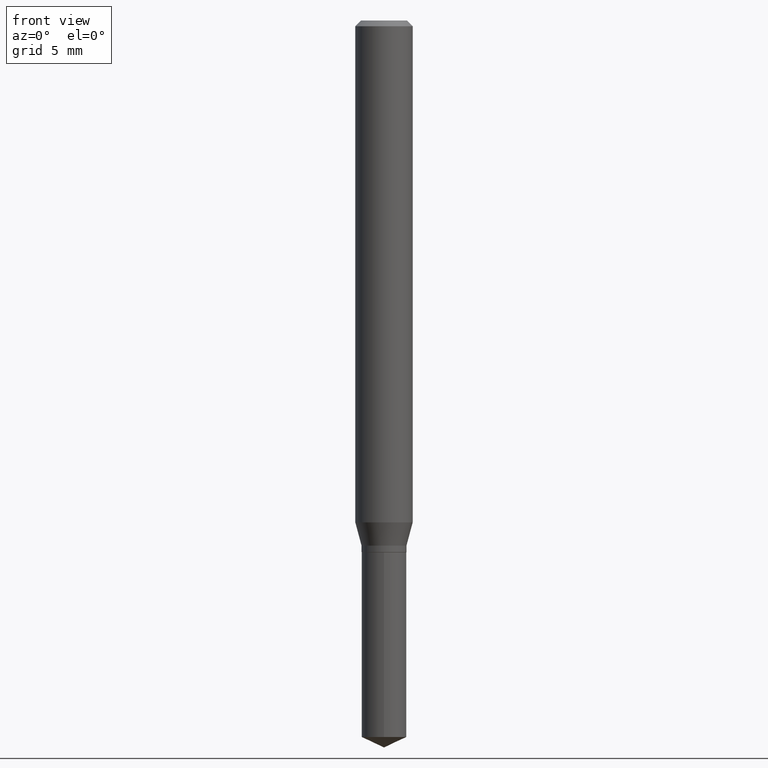
[diagram: clean part render]
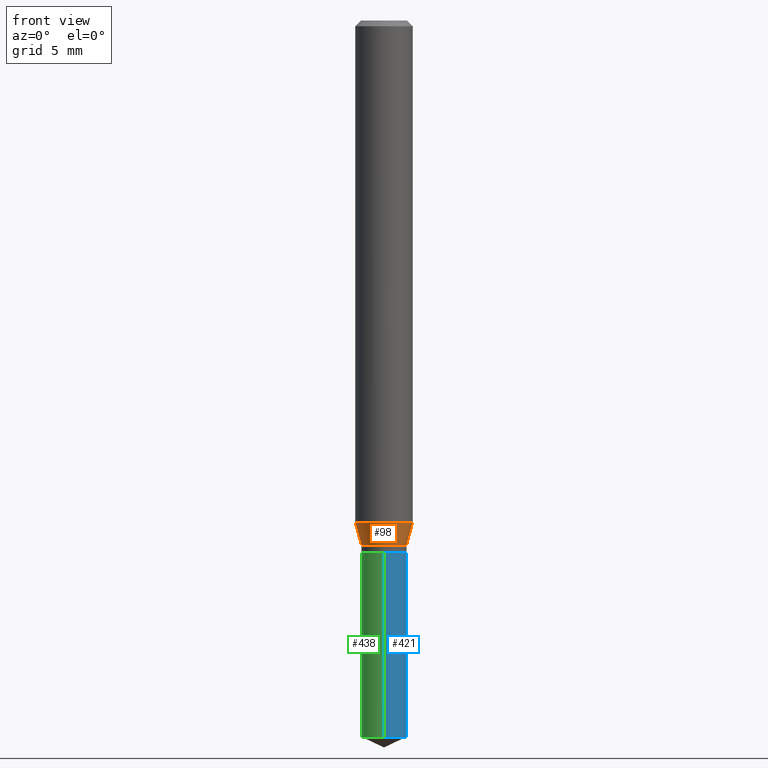
[diagram: same view with three faces highlighted in distinct colors, each labeled with its STEP entity id]
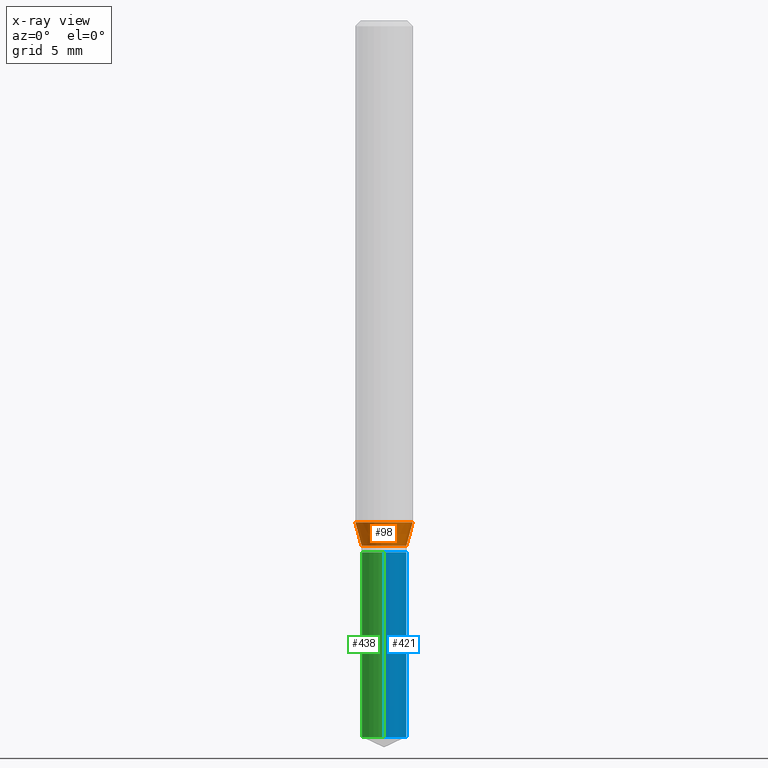
[diagram: x-ray of the same camera — body ghosted, the three highlighted faces saturated]
A machine part, front view with three faces highlighted in distinct colors.
The next image is the same camera in x-ray (body ghosted, the three faces saturated) — at least one of them is partly hidden behind the body in this view.
Their STEP definitions:

[orange] entity #98 — the highlighted conical surface has half-angle 15 deg.
#10 = DIRECTION ( 'NONE',  ( -2.445468806185136597E-29, 3.491481338843145583E-15, 1.000000000000000000 ) ) ;
#22 = ORIENTED_EDGE ( 'NONE', *, *, #50, .T. ) ;
#23 = DIRECTION ( 'NONE',  ( -0.2588190451025210725, 5.211531920934548675E-15, 0.9659258262890682012 ) ) ;
#25 = CARTESIAN_POINT ( 'NONE',  ( -0.04624999999999999944, -3.467661644435105114E-15, -1.080600000000000005 ) ) ;
#37 = EDGE_CURVE ( 'NONE', #220, #103, #196, .T. ) ;
#41 = LINE ( 'NONE', #267, #450 ) ;
#43 = EDGE_LOOP ( 'NONE', ( #129, #22, #459, #265 ) ) ;
#50 = EDGE_CURVE ( 'NONE', #220, #403, #480, .T. ) ;
#56 = VECTOR ( 'NONE', #23, 39.37007874015748143 ) ;
#57 = CIRCLE ( 'NONE', #108, 0.05905000000000013016 ) ;
#72 = CARTESIAN_POINT ( 'NONE',  ( 0.05905000000000013016, -4.018449743268188111E-15, -1.032829749663117802 ) ) ;
#98 = ADVANCED_FACE ( 'NONE', ( #123 ), #389, .T. ) ;
#103 = VERTEX_POINT ( 'NONE', #285 ) ;
#108 = AXIS2_PLACEMENT_3D ( 'NONE', #384, #216, #313 ) ;
#123 = FACE_OUTER_BOUND ( 'NONE', #43, .T. ) ;
#129 = ORIENTED_EDGE ( 'NONE', *, *, #37, .F. ) ;
#146 = CARTESIAN_POINT ( 'NONE',  ( 0.04624999999999999944, -4.095856758596892601E-15, -1.080600000000000005 ) ) ;
#147 = DIRECTION ( 'NONE',  ( 0.2588190451025210725, 1.565188264969624137E-15, 0.9659258262890682012 ) ) ;
#159 = DIRECTION ( 'NONE',  ( 1.000000000000000000, -6.982962677686265133E-15, 0.000000000000000000 ) ) ;
#161 = DIRECTION ( 'NONE',  ( -2.445468806185136597E-29, 3.491481338843145583E-15, 1.000000000000000000 ) ) ;
#196 = LINE ( 'NONE', #467, #56 ) ;
#216 = DIRECTION ( 'NONE',  ( -2.445468806185136597E-29, 3.491481338843145583E-15, 1.000000000000000000 ) ) ;
#220 = VERTEX_POINT ( 'NONE', #25 ) ;
#221 = AXIS2_PLACEMENT_3D ( 'NONE', #360, #10, #159 ) ;
#225 = DIRECTION ( 'NONE',  ( 1.000000000000000000, -6.982962677686265133E-15, 0.000000000000000000 ) ) ;
#265 = ORIENTED_EDGE ( 'NONE', *, *, #391, .F. ) ;
#267 = CARTESIAN_POINT ( 'NONE',  ( 0.04624999999999999944, -4.095856758596892601E-15, -1.080600000000000005 ) ) ;
#285 = CARTESIAN_POINT ( 'NONE',  ( -0.05905000000000013016, -3.186530311684473698E-15, -1.032829749663117802 ) ) ;
#302 = AXIS2_PLACEMENT_3D ( 'NONE', #426, #161, #225 ) ;
#313 = DIRECTION ( 'NONE',  ( 1.000000000000000000, -6.982962677686265133E-15, 0.000000000000000000 ) ) ;
#360 = CARTESIAN_POINT ( 'NONE',  ( 2.642573591963658303E-29, -3.772894734753902608E-15, -1.080600000000000005 ) ) ;
#384 = CARTESIAN_POINT ( 'NONE',  ( 2.525752934901158389E-29, -3.606105797150813980E-15, -1.032829749663117802 ) ) ;
#389 = CONICAL_SURFACE ( 'NONE', #221, 0.04624999999999999944, 0.2617993877991497409 ) ;
#391 = EDGE_CURVE ( 'NONE', #103, #484, #57, .T. ) ;
#403 = VERTEX_POINT ( 'NONE', #146 ) ;
#420 = EDGE_CURVE ( 'NONE', #403, #484, #41, .T. ) ;
#426 = CARTESIAN_POINT ( 'NONE',  ( 2.642573591963658303E-29, -3.772894734753902608E-15, -1.080600000000000005 ) ) ;
#450 = VECTOR ( 'NONE', #147, 39.37007874015748143 ) ;
#459 = ORIENTED_EDGE ( 'NONE', *, *, #420, .T. ) ;
#467 = CARTESIAN_POINT ( 'NONE',  ( -0.04624999999999999944, -3.444268719464856571E-15, -1.080600000000000005 ) ) ;
#480 = CIRCLE ( 'NONE', #302, 0.04624999999999999944 ) ;
#484 = VERTEX_POINT ( 'NONE', #72 ) ;

[blue] entity #421 — the highlighted cylindrical surface (edge-blend (fillet) strip) has radius 1.1747 mm, axis along (-0, 0, 1).
#15 = VERTEX_POINT ( 'NONE', #126 ) ;
#39 = CYLINDRICAL_SURFACE ( 'NONE', #122, 0.04624999999999999944 ) ;
#40 = VECTOR ( 'NONE', #483, 39.37007874015748143 ) ;
#42 = FACE_OUTER_BOUND ( 'NONE', #290, .T. ) ;
#55 = DIRECTION ( 'NONE',  ( -2.445458899330790108E-29, 3.491495526022433205E-15, 1.000000000000000000 ) ) ;
#67 = LINE ( 'NONE', #415, #462 ) ;
#70 = DIRECTION ( 'NONE',  ( -6.982962677686265922E-15, -1.000000000000000000, 5.906698364679487997E-15 ) ) ;
#83 = ORIENTED_EDGE ( 'NONE', *, *, #482, .T. ) ;
#122 = AXIS2_PLACEMENT_3D ( 'NONE', #185, #386, #150 ) ;
#126 = CARTESIAN_POINT ( 'NONE',  ( -3.229620238429630240E-16, -0.04625000000000382971, -1.094499999999999806 ) ) ;
#150 = DIRECTION ( 'NONE',  ( -6.982962677686265922E-15, -1.000000000000000000, 2.953349182339743999E-15 ) ) ;
#151 = EDGE_CURVE ( 'NONE', #15, #233, #179, .T. ) ;
#175 = DIRECTION ( 'NONE',  ( -2.445458899330790108E-29, 3.491495526022433599E-15, 1.000000000000000000 ) ) ;
#179 = CIRCLE ( 'NONE', #357, 0.04624999999999999944 ) ;
#185 = CARTESIAN_POINT ( 'NONE',  ( 2.676565608369631794E-29, -3.821426325363822773E-15, -1.094499999999999806 ) ) ;
#200 = DIRECTION ( 'NONE',  ( -6.982962677686265922E-15, -1.000000000000000000, 2.953349182339743999E-15 ) ) ;
#201 = EDGE_CURVE ( 'NONE', #278, #233, #67, .T. ) ;
#213 = CARTESIAN_POINT ( 'NONE',  ( -3.229620238429536562E-16, -0.04625000000000513423, -1.474533270810331143 ) ) ;
#233 = VERTEX_POINT ( 'NONE', #486 ) ;
#241 = VERTEX_POINT ( 'NONE', #213 ) ;
#242 = ORIENTED_EDGE ( 'NONE', *, *, #151, .F. ) ;
#259 = CARTESIAN_POINT ( 'NONE',  ( 3.605921352514544890E-29, -5.148310790137766755E-15, -1.474533270810331587 ) ) ;
#271 = AXIS2_PLACEMENT_3D ( 'NONE', #259, #417, #70 ) ;
#274 = ORIENTED_EDGE ( 'NONE', *, *, #295, .F. ) ;
#278 = VERTEX_POINT ( 'NONE', #299 ) ;
#290 = EDGE_LOOP ( 'NONE', ( #83, #405, #242, #274 ) ) ;
#295 = EDGE_CURVE ( 'NONE', #241, #15, #342, .T. ) ;
#299 = CARTESIAN_POINT ( 'NONE',  ( 3.286260152890822745E-16, 0.04624999999999482997, -1.474533270810331809 ) ) ;
#315 = CIRCLE ( 'NONE', #271, 0.04624999999999999944 ) ;
#325 = CARTESIAN_POINT ( 'NONE',  ( 2.676565608369631794E-29, -3.821426325363822773E-15, -1.094499999999999806 ) ) ;
#342 = LINE ( 'NONE', #489, #40 ) ;
#357 = AXIS2_PLACEMENT_3D ( 'NONE', #325, #55, #200 ) ;
#386 = DIRECTION ( 'NONE',  ( -2.445458899330790108E-29, 3.491495526022433205E-15, 1.000000000000000000 ) ) ;
#405 = ORIENTED_EDGE ( 'NONE', *, *, #201, .T. ) ;
#415 = CARTESIAN_POINT ( 'NONE',  ( 3.286260152890730547E-16, 0.04624999999999617611, -1.094500000000000028 ) ) ;
#417 = DIRECTION ( 'NONE',  ( -2.445458899330790108E-29, 3.491495526022433205E-15, 1.000000000000000000 ) ) ;
#421 = ADVANCED_FACE ( 'NONE', ( #42 ), #39, .T. ) ;
#462 = VECTOR ( 'NONE', #175, 39.37007874015748143 ) ;
#482 = EDGE_CURVE ( 'NONE', #241, #278, #315, .T. ) ;
#483 = DIRECTION ( 'NONE',  ( -2.445458899330790108E-29, 3.491495526022433599E-15, 1.000000000000000000 ) ) ;
#486 = CARTESIAN_POINT ( 'NONE',  ( 3.286260152890823731E-16, 0.04624999999999617611, -1.094500000000000028 ) ) ;
#489 = CARTESIAN_POINT ( 'NONE',  ( -3.229620238429630240E-16, -0.04625000000000382971, -1.094499999999999806 ) ) ;

[green] entity #438 — the highlighted cylindrical surface (edge-blend (fillet) strip) has radius 1.1747 mm, axis along (-0, 0, 1).
#15 = VERTEX_POINT ( 'NONE', #126 ) ;
#40 = VECTOR ( 'NONE', #483, 39.37007874015748143 ) ;
#63 = CIRCLE ( 'NONE', #350, 0.04624999999999999944 ) ;
#67 = LINE ( 'NONE', #415, #462 ) ;
#74 = DIRECTION ( 'NONE',  ( -6.982962677686265922E-15, -1.000000000000000000, 2.953349182339743999E-15 ) ) ;
#75 = CARTESIAN_POINT ( 'NONE',  ( 2.676565608369631794E-29, -3.821426325363822773E-15, -1.094499999999999806 ) ) ;
#109 = DIRECTION ( 'NONE',  ( -2.445458899330790108E-29, 3.491495526022433205E-15, 1.000000000000000000 ) ) ;
#125 = ORIENTED_EDGE ( 'NONE', *, *, #375, .F. ) ;
#126 = CARTESIAN_POINT ( 'NONE',  ( -3.229620238429630240E-16, -0.04625000000000382971, -1.094499999999999806 ) ) ;
#132 = DIRECTION ( 'NONE',  ( -6.982962677686265922E-15, -1.000000000000000000, 5.906698364679487997E-15 ) ) ;
#143 = AXIS2_PLACEMENT_3D ( 'NONE', #75, #180, #74 ) ;
#153 = ORIENTED_EDGE ( 'NONE', *, *, #237, .T. ) ;
#175 = DIRECTION ( 'NONE',  ( -2.445458899330790108E-29, 3.491495526022433599E-15, 1.000000000000000000 ) ) ;
#178 = CARTESIAN_POINT ( 'NONE',  ( 3.605921352514544890E-29, -5.148310790137766755E-15, -1.474533270810331587 ) ) ;
#180 = DIRECTION ( 'NONE',  ( -2.445458899330790108E-29, 3.491495526022433205E-15, 1.000000000000000000 ) ) ;
#201 = EDGE_CURVE ( 'NONE', #278, #233, #67, .T. ) ;
#213 = CARTESIAN_POINT ( 'NONE',  ( -3.229620238429536562E-16, -0.04625000000000513423, -1.474533270810331143 ) ) ;
#233 = VERTEX_POINT ( 'NONE', #486 ) ;
#237 = EDGE_CURVE ( 'NONE', #278, #241, #63, .T. ) ;
#241 = VERTEX_POINT ( 'NONE', #213 ) ;
#251 = DIRECTION ( 'NONE',  ( -2.445458899330790108E-29, 3.491495526022433205E-15, 1.000000000000000000 ) ) ;
#262 = CIRCLE ( 'NONE', #143, 0.04624999999999999944 ) ;
#278 = VERTEX_POINT ( 'NONE', #299 ) ;
#295 = EDGE_CURVE ( 'NONE', #241, #15, #342, .T. ) ;
#299 = CARTESIAN_POINT ( 'NONE',  ( 3.286260152890822745E-16, 0.04624999999999482997, -1.474533270810331809 ) ) ;
#342 = LINE ( 'NONE', #489, #40 ) ;
#345 = ORIENTED_EDGE ( 'NONE', *, *, #295, .T. ) ;
#350 = AXIS2_PLACEMENT_3D ( 'NONE', #178, #251, #132 ) ;
#375 = EDGE_CURVE ( 'NONE', #233, #15, #262, .T. ) ;
#381 = DIRECTION ( 'NONE',  ( -6.982962677686265922E-15, -1.000000000000000000, 2.953349182339743999E-15 ) ) ;
#415 = CARTESIAN_POINT ( 'NONE',  ( 3.286260152890730547E-16, 0.04624999999999617611, -1.094500000000000028 ) ) ;
#424 = CYLINDRICAL_SURFACE ( 'NONE', #463, 0.04624999999999999944 ) ;
#428 = ORIENTED_EDGE ( 'NONE', *, *, #201, .F. ) ;
#438 = ADVANCED_FACE ( 'NONE', ( #454 ), #424, .T. ) ;
#440 = EDGE_LOOP ( 'NONE', ( #428, #153, #345, #125 ) ) ;
#453 = CARTESIAN_POINT ( 'NONE',  ( 2.676565608369631794E-29, -3.821426325363822773E-15, -1.094499999999999806 ) ) ;
#454 = FACE_OUTER_BOUND ( 'NONE', #440, .T. ) ;
#462 = VECTOR ( 'NONE', #175, 39.37007874015748143 ) ;
#463 = AXIS2_PLACEMENT_3D ( 'NONE', #453, #109, #381 ) ;
#483 = DIRECTION ( 'NONE',  ( -2.445458899330790108E-29, 3.491495526022433599E-15, 1.000000000000000000 ) ) ;
#486 = CARTESIAN_POINT ( 'NONE',  ( 3.286260152890823731E-16, 0.04624999999999617611, -1.094500000000000028 ) ) ;
#489 = CARTESIAN_POINT ( 'NONE',  ( -3.229620238429630240E-16, -0.04625000000000382971, -1.094499999999999806 ) ) ;